MODEL slx_99e01e92f544
KIND model
CONFIG AbsTol = auto
CONFIG EnableMultiTasking = off
CONFIG FixedStep = 0.1
CONFIG InitFcn = sampleTime = 0.05;\n\n% Robot parameters\nwheelRadius = 0.025;\nrobotRadius = 0.15;\n\n% Lidar parameters\nsensorOffset = [0,0];\nscanAngles = linspace(-pi/2,pi/2,9)';\nmaxRange = 5;\n\n%%%%%%\nks=1;\n\n%初始位置\nx_1_0=0;\ny_1_0=0;\nyaw_1_0=0;\n\nx_2_0=0;\ny_2_0=0.3;\nyaw_2_0=0;\n\nx_3_0=0;\ny_3_0=0.6;\nyaw_3_0=0;\n\nx_4_0=0;\ny_4_0=0.9;\nyaw_4_0=0;\n\n\nA=0.3;\nC=1.7;\nB=(A+C)/2;\n\nwp1=[A,A; B,A;  C,A; C,B;C,C; B,C; A,C;A,B];    \nWAY...<+28ch>
CONFIG MaxStep = auto
CONFIG MinStep = auto
CONFIG PreLoadFcn = % Simulation parameters\n%load exampleMap\n\n\n\n
CONFIG RelTol = 1e-3
CONFIG SampleTimeConstraint = Unconstrained
CONFIG SolverName = FixedStepAuto
CONFIG StartTime = 0.0
CONFIG StopTime = 30
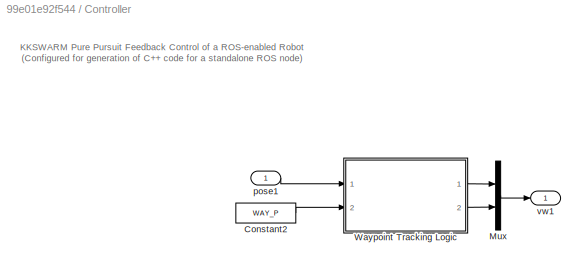
BLOCK [SubSystem] Controller
  Ports = [1, 1]
  RequestExecContextInheritance = off
BLOCK [Constant] Controller/Constant2
  Value = WAY_P
BLOCK [Mux] Controller/Mux
  DisplayOption = bar
  Inputs = 2
  Ports = [2, 1]
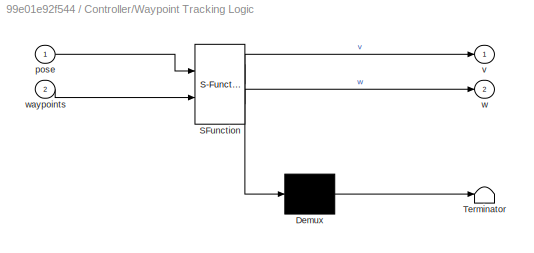
BLOCK [SubSystem] Controller/Waypoint Tracking Logic
  ErrorFcn = Stateflow.Translate.translate
  PermitHierarchicalResolution = ExplicitOnly
  Ports = [2, 2]
  RequestExecContextInheritance = off
  SFBlockType = Chart
  TreatAsAtomicUnit = on
BLOCK [Demux] Controller/Waypoint Tracking Logic/ Demux 
  Outputs = 1
  Ports = [1, 1]
BLOCK [S-Function] Controller/Waypoint Tracking Logic/ SFunction 
  EnableBusSupport = on
  FunctionName = sf_sfun
  PortCounts = [2 3]
  Ports = [2, 3]
  SFcnIsStateOwnerBlock = off
  SFunctionDeploymentMode = off
  Tag = Stateflow S-Function 3
BLOCK [Terminator] Controller/Waypoint Tracking Logic/ Terminator 
BLOCK [Inport] Controller/Waypoint Tracking Logic/pose
BLOCK [Outport] Controller/Waypoint Tracking Logic/v
  VectorParamsAs1DForOutWhenUnconnected = off
BLOCK [Outport] Controller/Waypoint Tracking Logic/w
  Port = 2
  VectorParamsAs1DForOutWhenUnconnected = off
BLOCK [Inport] Controller/Waypoint Tracking Logic/waypoints
  Port = 2
BLOCK [Inport] Controller/pose1
BLOCK [Outport] Controller/vw1
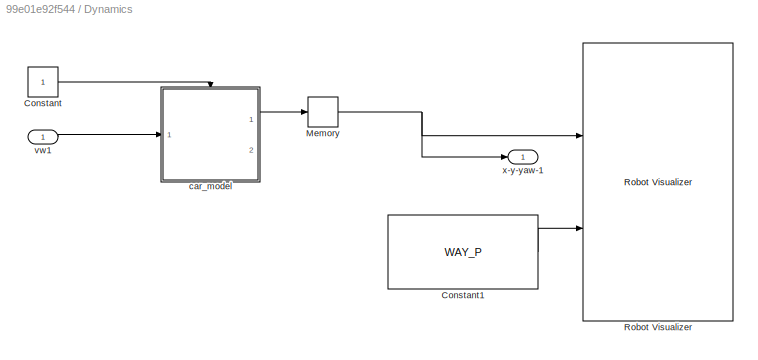
BLOCK [SubSystem] Dynamics
  Ports = [1, 1]
  RequestExecContextInheritance = off
BLOCK [Constant] Dynamics/Constant
BLOCK [Constant] Dynamics/Constant1
  Value = WAY_P
BLOCK [Memory] Dynamics/Memory
  InheritSampleTime = on
BLOCK [Reference] Dynamics/Robot Visualizer  REF=mobileRoboticsLib/Environments/Robot Visualizer
  Ports = [2]
  Priority = 99
  SourceBlock = mobileRoboticsLib/Environments/Robot Visualizer
  SourceProductName = Mobile Robotics Simulation Toolbox
  SourceType = Visualizer2D
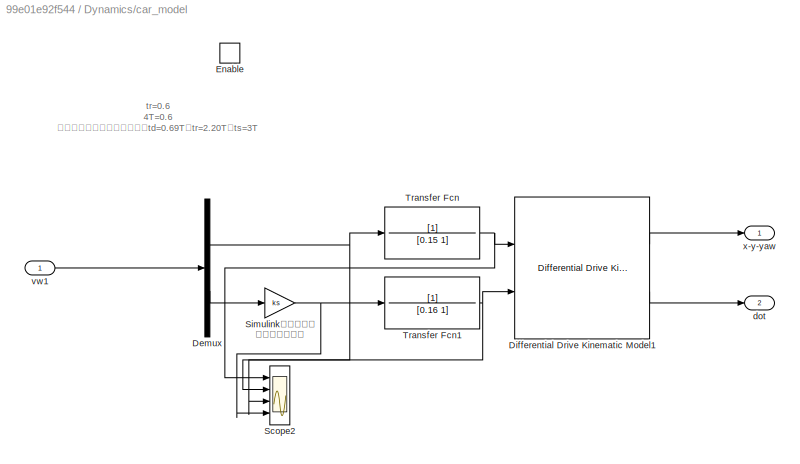
BLOCK [SubSystem] Dynamics/car_model
  Ports = [1, 2, 1]
  RequestExecContextInheritance = off
BLOCK [Demux] Dynamics/car_model/Demux
  Outputs = 2
  Ports = [1, 2]
BLOCK [Reference] Dynamics/car_model/Differential Drive Kinematic Model1  REF=robotmobilelib/Differential Drive Kinematic Model
  Ports = [2, 2]
  SourceBlock = robotmobilelib/Differential Drive Kinematic Model
  SourceProductBaseCode = RO
  SourceType = Differential Drive Kinematic Model
BLOCK [EnablePort] Dynamics/car_model/Enable
  Ports = [0, 1]
  ShowOutputPort = on
BLOCK [Scope] Dynamics/car_model/Scope2
  Floating = off
  NumInputPorts = 4
  Ports = [4]
  ScopeSpecificationString = Simulink.scopes.TimeScopeBlockCfg('CurrentConfiguration', extmgr.ConfigurationSet(extmgr.Configuration('Core','General UI',true),extmgr.Configuration('Core','Source UI',true),extmgr.Configuration('Sources','WiredSimulink',true,'DataLoggingVariableName','ScopeData2'),extmgr.Configuration('Visuals','Time Domain',true,'SerializedDisplays',{struct('MinYLimReal','-1.62445','MaxYLimReal','2.54114','YLab...<+1448ch>
BLOCK [Gain] Dynamics/car_model/Simulink顺时针为正 小车逆时针为正
  Gain = ks
BLOCK [TransferFcn] Dynamics/car_model/Transfer Fcn
  Denominator = [0.15 1]
BLOCK [TransferFcn] Dynamics/car_model/Transfer Fcn1
  Denominator = [0.16 1]
BLOCK [Outport] Dynamics/car_model/dot
  Port = 2
BLOCK [Inport] Dynamics/car_model/vw1
BLOCK [Outport] Dynamics/car_model/x-y-yaw
BLOCK [Inport] Dynamics/vw1
BLOCK [Outport] Dynamics/x-y-yaw-1
ANNOTATION (root): Robot PID controller Author: Top <email> Data:2022.4.1 使用步骤 1.在“附加功能”搜索并安装 Mobile Robotics Simulation Toolbox 2. 算法只需要修改Robot controller 输入为 x,y,yaw 输出为 v,omiga 速度和转动角速度
ANNOTATION Controller: KKSWARM Pure Pursuit Feedback Control of a ROS-enabled Robot (Configured for generation of C++ code for a standalone ROS node)
ANNOTATION Dynamics/car_model: tr=0.6 4T=0.6 一阶系统的动态性能指标为：td=0.69T，tr=2.20T，ts=3T
LINE Controller/Constant2:1 -> Controller/Waypoint Tracking Logic:2
LINE Controller/Mux:1 -> Controller/vw1:1
LINE Controller/Waypoint Tracking Logic:1 -> Controller/Mux:1
LINE Controller/Waypoint Tracking Logic:2 -> Controller/Mux:2
LINE Controller/pose1:1 -> Controller/Waypoint Tracking Logic:1
LINE Controller:1 -> Dynamics:1
LINE Dynamics/Constant1:1 -> Dynamics/Robot Visualizer:2
LINE Dynamics/Constant:1 -> Dynamics/car_model:enable
NET Dynamics/Memory:1 -> Dynamics/Robot Visualizer:1, Dynamics/x-y-yaw-1:1
NET Dynamics/car_model/Demux:1 -> Dynamics/car_model/Scope2:3, Dynamics/car_model/Transfer Fcn:1
LINE Dynamics/car_model/Demux:2 -> Dynamics/car_model/Simulink顺时针为正 小车逆时针为正:1
LINE Dynamics/car_model/Differential Drive Kinematic Model1:1 -> Dynamics/car_model/x-y-yaw:1
LINE Dynamics/car_model/Differential Drive Kinematic Model1:2 -> Dynamics/car_model/dot:1
NET Dynamics/car_model/Simulink顺时针为正 小车逆时针为正:1 -> Dynamics/car_model/Scope2:4, Dynamics/car_model/Transfer Fcn1:1
NET Dynamics/car_model/Transfer Fcn1:1 -> Dynamics/car_model/Differential Drive Kinematic Model1:2, Dynamics/car_model/Scope2:2
NET Dynamics/car_model/Transfer Fcn:1 -> Dynamics/car_model/Differential Drive Kinematic Model1:1, Dynamics/car_model/Scope2:1
LINE Dynamics/car_model/vw1:1 -> Dynamics/car_model/Demux:1
LINE Dynamics/car_model:1 -> Dynamics/Memory:1
LINE Dynamics/vw1:1 -> Dynamics/car_model:1
LINE Dynamics:1 -> Controller:1
note: NET lines group one-source signal fan-out (src -> all destinations, sorted); 1:1 wires keep LINE
CHART Controller/Waypoint Tracking Logic states=3 transitions=11
  STATE_LABEL 'FollowWaypoints\nentry:\ngoalPoint = waypoints(idx,:);\nentry, during:\n[angle,range] = trackGoal(goalPoint);'
  STATE_LABEL '% Set angular speed if\n% angle outside deadband\n[abs(angle) > pi/24]'
  STATE_LABEL '{w = 0;}'
  STATE_LABEL '% Proportional \n% control \n{w = 1.5*angle;}'
  STATE_LABEL 'ReachedGoal\nentry:\nv = 0;\nw = 0.5;'
  STATE_LABEL '[ang,dist] = trackGoal(goal)'
  STATE_LABEL 'SCRIPT:\nfunction [ang,dist] = trackGoal(goal)\n% Finds the angle (theta) and distance (dist) between the \n% vehicle and a goal point\n    \nposDiff = [goal(1)-pose(1);goal(2)-pose(2)];\n\nang = angdiff(pose(3),atan2(posDiff(2),posDiff(1)));\ndist = sqrt(posDiff(1)^2 + posDiff(2)^2);\n'
CHART  states=0 transitions=0
